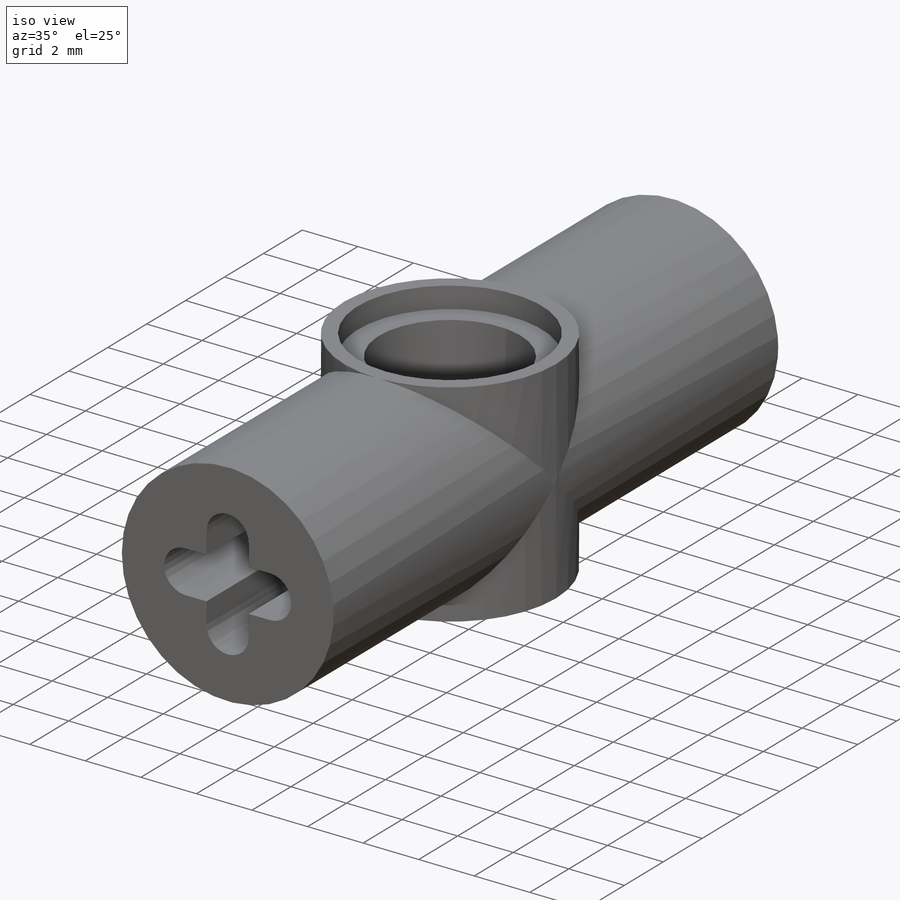
[diagram: iso view]
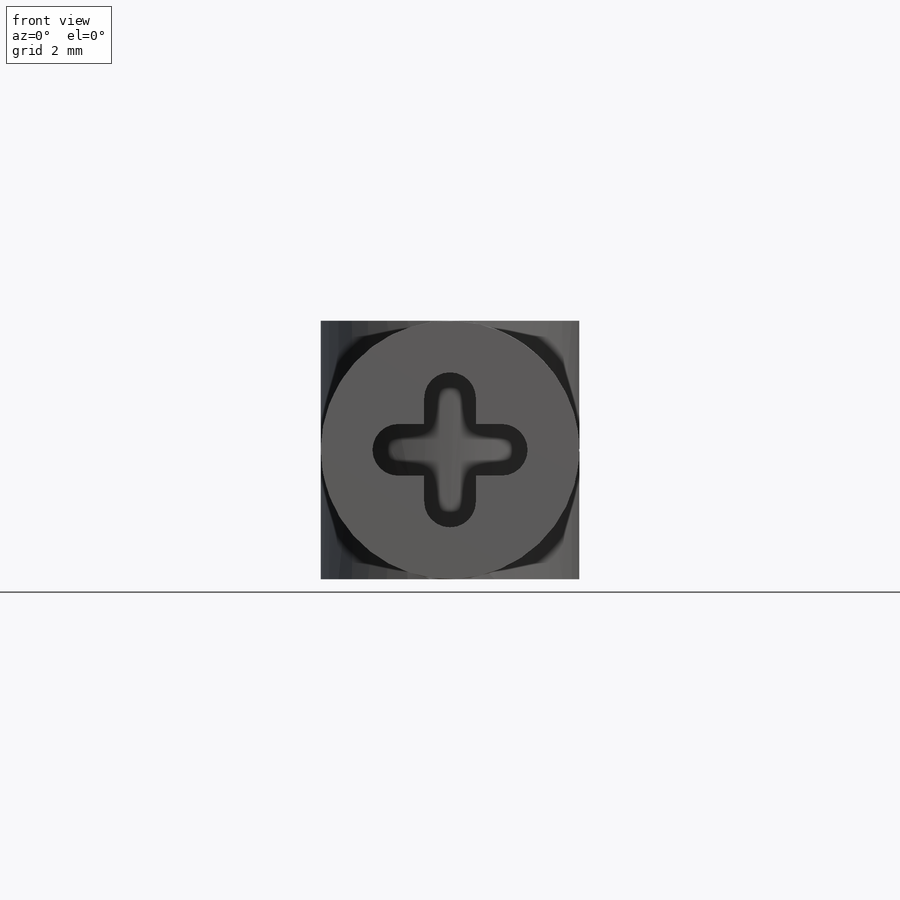
[diagram: front view]
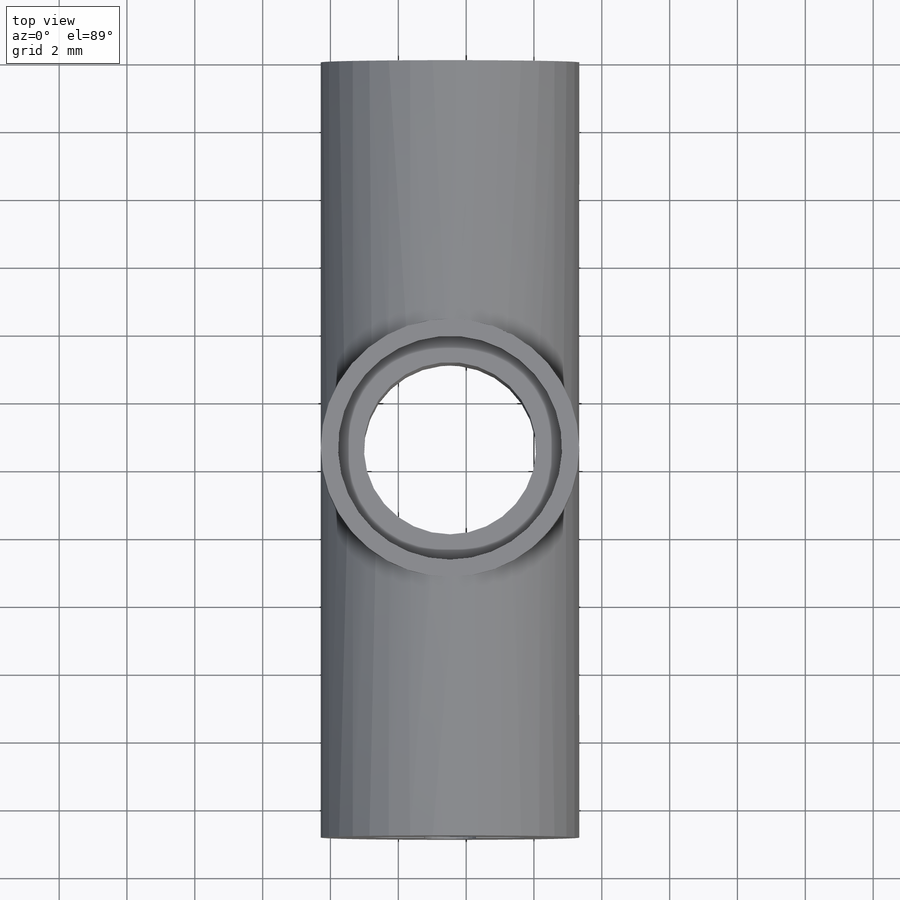
[diagram: top view]
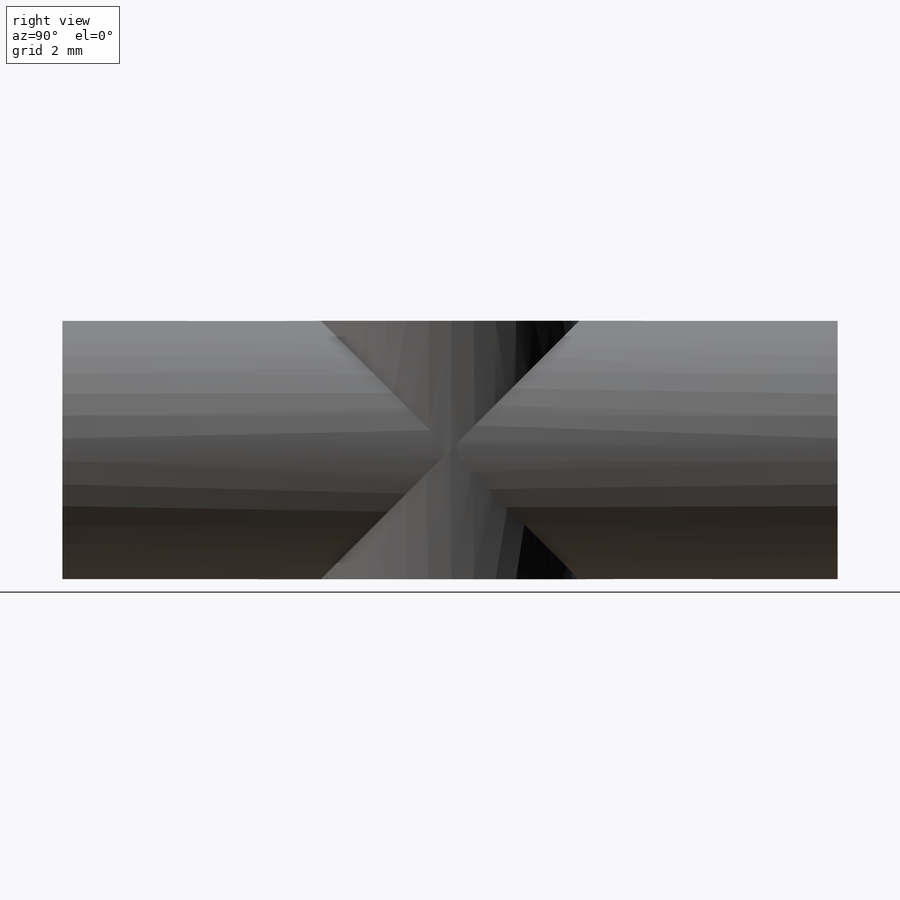
[diagram: right view]
SOLIDWORKS PART (.sldprt)
format: sldprt  version: not decoded by parser v0  size: 569,344 bytes
history: native  units: mm
features: sketch x5, cut_extrude x3, extrude x2, material x1 + 1 further entry (+12 scaffold rows collapsed)
feature tree (24):
  scaffold x12  (default folders/planes/origin — collapsed)
  material  "PVC Rigid"
  "Design Table"
  sketch  "Sketch1"  dims[c1.D2=7.62mm c1.D3=~5.005615mm c1.D4=~4.902756mm c1.D6=4.318mm c1.D9=0.508mm c1.D1=4.318mm c1.D5=0.508mm c2.D1=6.604mm c2.D4=5.08mm c2.D7=4.572mm c2.D9=~0.549692mm c2.D3=4.572mm c3.D4=7.62mm c3.D1=19.05mm c3.D3=~14.58202mm c4.D4=~12.042473mm c4.D3=0.508mm c5.D4=0.508mm c5.D6=0.508mm c5.D7=0.508mm c5.D8=0.508mm c5.D1=4.7625mm c6.D6=19.05mm c6.D9=19.05mm c7.D6=7.62mm c7.D1=4.7625mm c7.D5=~4.805419mm c7.D7=7.874mm c7.D8=3.937mm c8.D1=0.254mm c8.D8=1.524mm c8.D9=1.524mm c9.D1=1.524mm c9.D2=1.524mm c9.D5=0.508mm c9.D6=0.508mm c9.D7=0.508mm c10.D1=0.127mm c10.D5=0.508mm c10.D7=0.508mm]
  extrude  "Boss-Extrude1"  Depth=22.86mm
  sketch  "Sketch2"  dims[c1.D1=6.604mm c1.D2=3.302mm c2.D1=11.43mm]
  extrude  "Boss-Extrude2"  Depth=3.81mm
  sketch  "Sketch4"  dims[D1=~2.966742mm]
  cut_extrude  "Cut-Extrude1"  [1 undecoded]
  sketch  "Sketch5"  dims[D1=~3.179739mm]
  cut_extrude  "Cut-Extrude2"  Depth=0.762mm
  sketch  "Sketch6"  dims[D1=~3.064099mm]
  cut_extrude  "Cut-Extrude3"  Depth=0.762mm
decode coverage: 9 of 10 modeling features carry decoded parameters; 1 rows unclassified (native names shown)
note: ~ marks probable driven/reference dimensions
note: 1 parameter value undecoded
note: suppression state not decoded; provenance and decode notes live in map.json
